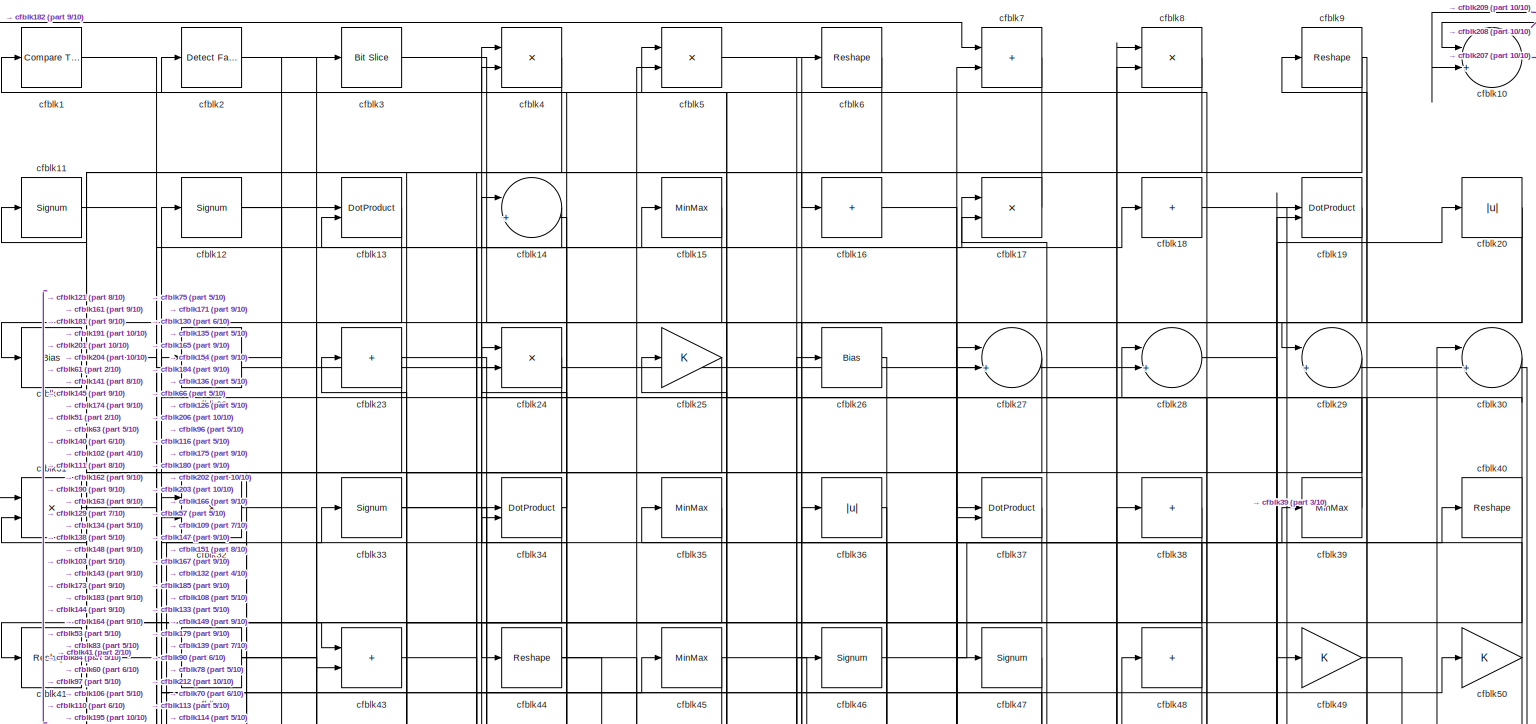
[diagram: root canvas - part 1/10, full width, top band]
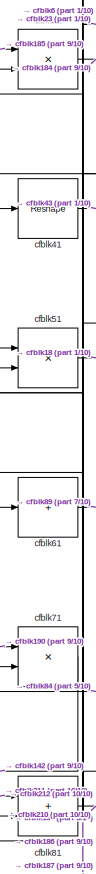
[diagram: root canvas - part 2/10, top left region]
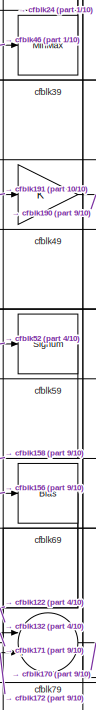
[diagram: root canvas - part 3/10, top right region]
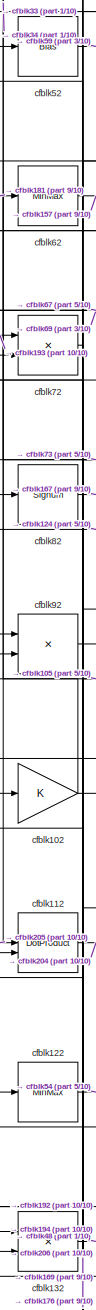
[diagram: root canvas - part 4/10, middle left region]
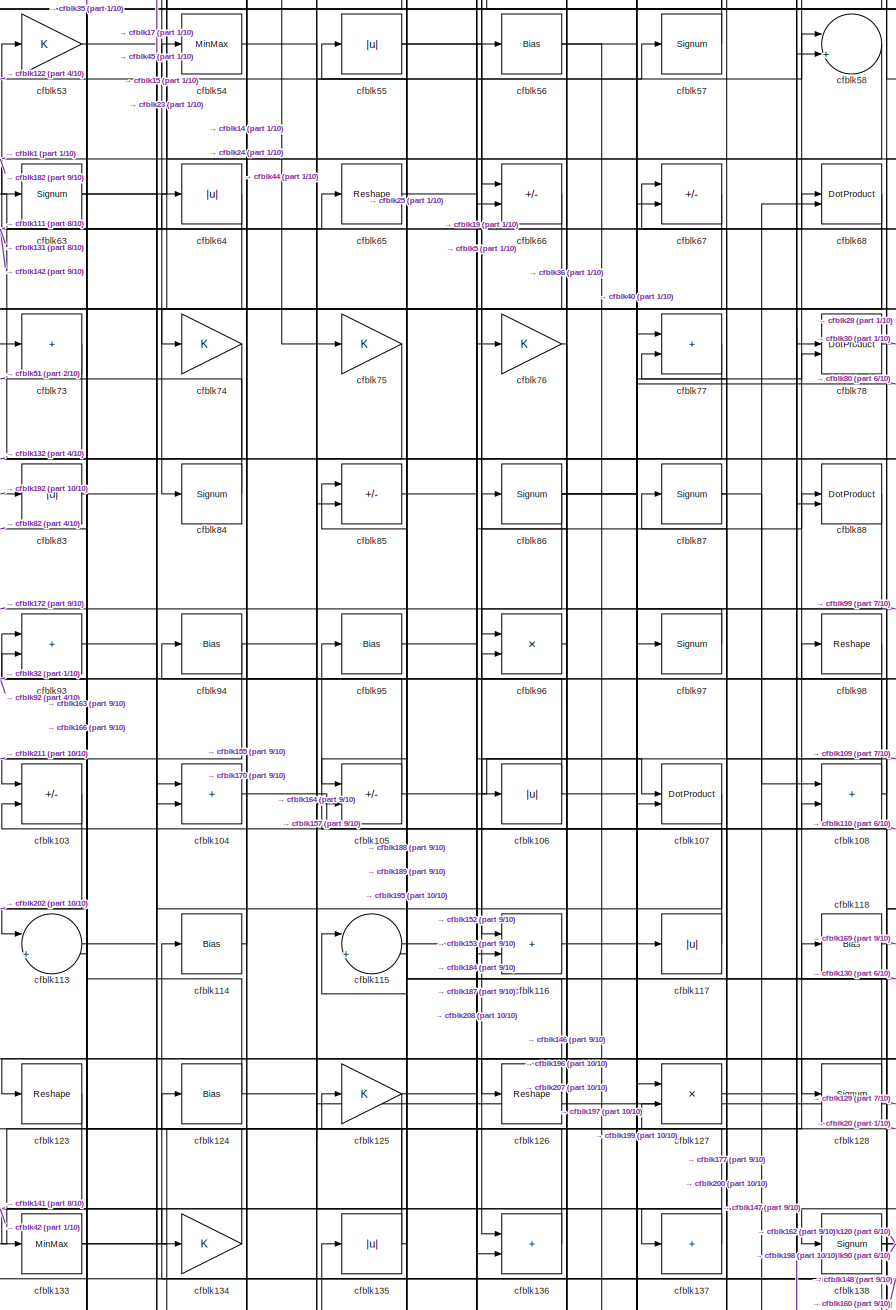
[diagram: root canvas - part 5/10, central region]
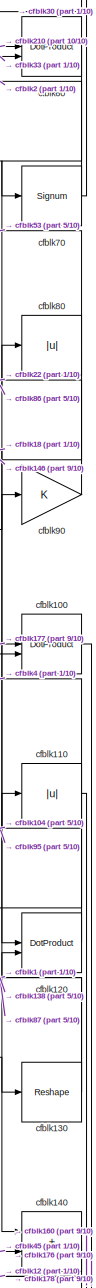
[diagram: root canvas - part 6/10, middle right region]
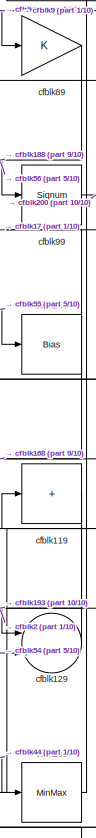
[diagram: root canvas - part 7/10, middle right region]
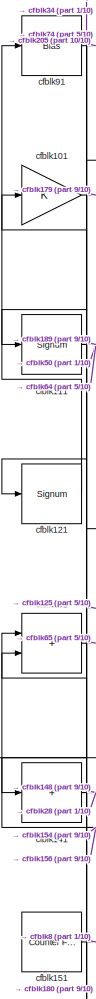
[diagram: root canvas - part 8/10, middle left region]
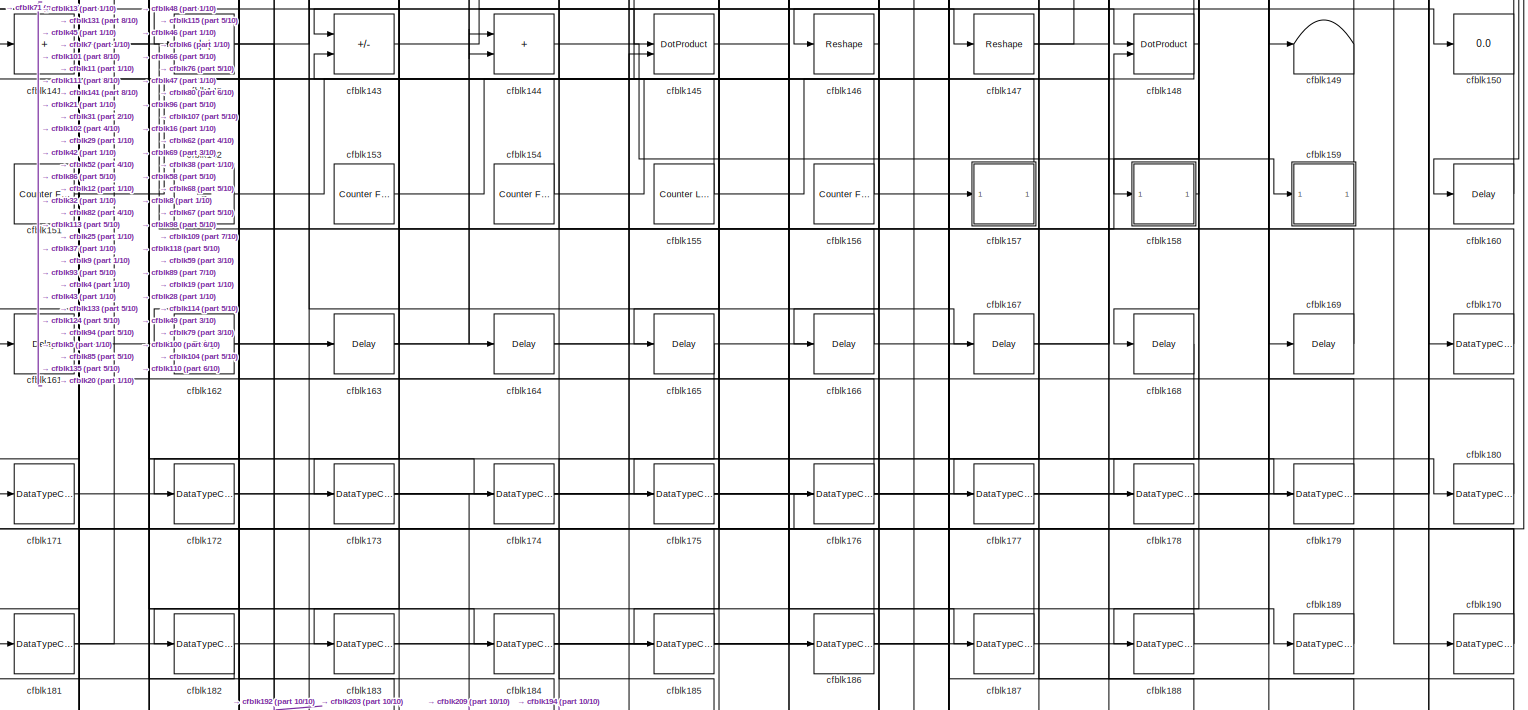
[diagram: root canvas - part 9/10, full width, bottom band]
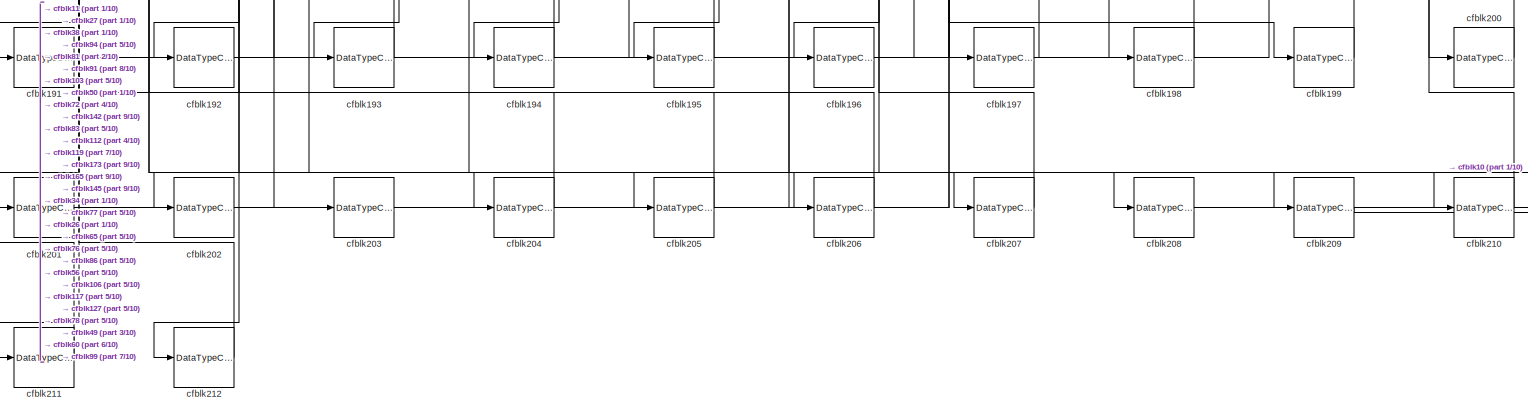
[diagram: root canvas - part 10/10, full width, bottom band]
MODEL slx_4d4747da5e24
KIND model
CONFIG AbsTol = auto
CONFIG EnableMultiTasking = off
CONFIG FixedStep = auto
CONFIG MaxStep = auto
CONFIG MinStep = auto
CONFIG RelTol = 1e-3
CONFIG SampleTimeConstraint = Unconstrained
CONFIG SolverName = VariableStepAuto
CONFIG StartTime = 0.0
CONFIG StopTime = 10.0
BLOCK [Reference] cfblk1  REF=hdlsllib/Logic and Bit
Operations/Compare
To Constant
  SourceBlock = hdlsllib/Logic and Bit\nOperations/Compare\nTo Constant
  SourceType = Compare To Constant
BLOCK [Sum] cfblk10
  Inputs = |++
BLOCK [DotProduct] cfblk100
  OutDataTypeStr = Inherit: Inherit via internal rule
BLOCK [Gain] cfblk101
BLOCK [Gain] cfblk102
BLOCK [Sum] cfblk103
  IconShape = rectangular
  Inputs = +-
BLOCK [Sum] cfblk104
  IconShape = rectangular
BLOCK [Sum] cfblk105
  IconShape = rectangular
  Inputs = +-
BLOCK [Abs] cfblk106
  SaturateOnIntegerOverflow = off
BLOCK [DotProduct] cfblk107
  OutDataTypeStr = Inherit: Inherit via internal rule
BLOCK [Sum] cfblk108
  IconShape = rectangular
BLOCK [Bias] cfblk109
  Bias = 0.0
  SaturateOnIntegerOverflow = off
BLOCK [Signum] cfblk11
BLOCK [Abs] cfblk110
  SaturateOnIntegerOverflow = off
BLOCK [Signum] cfblk111
BLOCK [DotProduct] cfblk112
  OutDataTypeStr = Inherit: Inherit via internal rule
BLOCK [Sum] cfblk113
  Inputs = |++
BLOCK [Bias] cfblk114
  Bias = 0.0
  SaturateOnIntegerOverflow = off
BLOCK [Sum] cfblk115
  Inputs = |++
BLOCK [Sum] cfblk116
  IconShape = rectangular
BLOCK [Abs] cfblk117
  SaturateOnIntegerOverflow = off
BLOCK [Bias] cfblk118
  Bias = 0.0
  SaturateOnIntegerOverflow = off
BLOCK [Sum] cfblk119
  IconShape = rectangular
  Inputs = +
BLOCK [Signum] cfblk12
BLOCK [DotProduct] cfblk120
  OutDataTypeStr = Inherit: Inherit via internal rule
BLOCK [Signum] cfblk121
BLOCK [MinMax] cfblk122
BLOCK [Reshape] cfblk123
BLOCK [Bias] cfblk124
  Bias = 0.0
  SaturateOnIntegerOverflow = off
BLOCK [Gain] cfblk125
BLOCK [Reshape] cfblk126
BLOCK [Product] cfblk127
  Inputs = */
  RndMeth = Zero
  SaturateOnIntegerOverflow = on
BLOCK [Signum] cfblk128
BLOCK [Sum] cfblk129
  Inputs = |++
BLOCK [DotProduct] cfblk13
  OutDataTypeStr = Inherit: Inherit via internal rule
BLOCK [Reshape] cfblk130
BLOCK [Sum] cfblk131
  IconShape = rectangular
BLOCK [Product] cfblk132
  Inputs = */
  RndMeth = Zero
  SaturateOnIntegerOverflow = on
BLOCK [MinMax] cfblk133
BLOCK [Gain] cfblk134
BLOCK [Abs] cfblk135
  SaturateOnIntegerOverflow = off
BLOCK [Sum] cfblk136
  IconShape = rectangular
BLOCK [Sum] cfblk137
  IconShape = rectangular
  Inputs = +
BLOCK [Signum] cfblk138
BLOCK [MinMax] cfblk139
BLOCK [Sum] cfblk14
  Inputs = |++
BLOCK [Sum] cfblk140
  IconShape = rectangular
BLOCK [Sum] cfblk141
  IconShape = rectangular
  Inputs = +
BLOCK [Abs] cfblk142
  SaturateOnIntegerOverflow = off
BLOCK [Sum] cfblk143
  IconShape = rectangular
  Inputs = +-
BLOCK [Sum] cfblk144
  IconShape = rectangular
BLOCK [DotProduct] cfblk145
  OutDataTypeStr = Inherit: Inherit via internal rule
BLOCK [Reshape] cfblk146
BLOCK [Reshape] cfblk147
BLOCK [DotProduct] cfblk148
  OutDataTypeStr = Inherit: Inherit via internal rule
BLOCK [Terminator] cfblk149
BLOCK [MinMax] cfblk15
BLOCK [Display] cfblk150
  Decimation = 1
BLOCK [Reference] cfblk151  REF=hdlsllib/Sources/Counter
Free-Running
  SourceBlock = hdlsllib/Sources/Counter\nFree-Running
  SourceType = Counter Free-Running
BLOCK [Ground] cfblk152
BLOCK [Reference] cfblk153  REF=hdlsllib/Sources/Counter
Free-Running
  SourceBlock = hdlsllib/Sources/Counter\nFree-Running
  SourceType = Counter Free-Running
BLOCK [Reference] cfblk154  REF=hdlsllib/Sources/Counter
Free-Running
  SourceBlock = hdlsllib/Sources/Counter\nFree-Running
  SourceType = Counter Free-Running
BLOCK [Reference] cfblk155  REF=hdlsllib/Sources/Counter
Limited
  SourceBlock = hdlsllib/Sources/Counter\nLimited
  SourceType = Counter Limited
BLOCK [Reference] cfblk156  REF=hdlsllib/Sources/Counter
Free-Running
  SourceBlock = hdlsllib/Sources/Counter\nFree-Running
  SourceType = Counter Free-Running
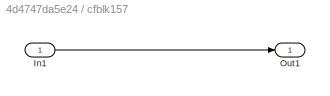
BLOCK [SubSystem] cfblk157
  LibrarySourceBlock = hdlsllib/Ports &\nSubsystems/Subsystem
BLOCK [Inport] cfblk157/In1
BLOCK [Outport] cfblk157/Out1
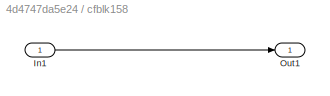
BLOCK [SubSystem] cfblk158
  LibrarySourceBlock = hdlsllib/Ports &\nSubsystems/Subsystem
BLOCK [Inport] cfblk158/In1
BLOCK [Outport] cfblk158/Out1
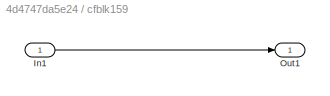
BLOCK [SubSystem] cfblk159
  LibrarySourceBlock = hdlsllib/Ports &\nSubsystems/Subsystem
BLOCK [Inport] cfblk159/In1
BLOCK [Outport] cfblk159/Out1
BLOCK [Sum] cfblk16
  IconShape = rectangular
  Inputs = +
BLOCK [Delay] cfblk160
  InputPortMap = u0
  SampleTime = 1
BLOCK [Delay] cfblk161
  InputPortMap = u0
  SampleTime = 1
BLOCK [Delay] cfblk162
  InputPortMap = u0
  SampleTime = 1
BLOCK [Delay] cfblk163
  InputPortMap = u0
  SampleTime = 1
BLOCK [Delay] cfblk164
  InputPortMap = u0
  SampleTime = 1
BLOCK [Delay] cfblk165
  InputPortMap = u0
  SampleTime = 1
BLOCK [Delay] cfblk166
  InputPortMap = u0
  SampleTime = 1
BLOCK [Delay] cfblk167
  InputPortMap = u0
  SampleTime = 1
BLOCK [Delay] cfblk168
  InputPortMap = u0
  SampleTime = 1
BLOCK [Delay] cfblk169
  InputPortMap = u0
  SampleTime = 1
BLOCK [Product] cfblk17
  Inputs = */
  RndMeth = Zero
  SaturateOnIntegerOverflow = on
BLOCK [DataTypeConversion] cfblk170
  OutDataTypeStr = uint8
  RndMeth = Floor
  SaturateOnIntegerOverflow = off
BLOCK [DataTypeConversion] cfblk171
  OutDataTypeStr = uint8
  RndMeth = Floor
  SaturateOnIntegerOverflow = off
BLOCK [DataTypeConversion] cfblk172
  OutDataTypeStr = uint8
  RndMeth = Floor
  SaturateOnIntegerOverflow = off
BLOCK [DataTypeConversion] cfblk173
  RndMeth = Floor
  SaturateOnIntegerOverflow = off
BLOCK [DataTypeConversion] cfblk174
  OutDataTypeStr = uint8
  RndMeth = Floor
  SaturateOnIntegerOverflow = off
BLOCK [DataTypeConversion] cfblk175
  OutDataTypeStr = uint8
  RndMeth = Floor
  SaturateOnIntegerOverflow = off
BLOCK [DataTypeConversion] cfblk176
  OutDataTypeStr = uint8
  RndMeth = Floor
  SaturateOnIntegerOverflow = off
BLOCK [DataTypeConversion] cfblk177
  OutDataTypeStr = uint8
  RndMeth = Floor
  SaturateOnIntegerOverflow = off
BLOCK [DataTypeConversion] cfblk178
  OutDataTypeStr = uint8
  RndMeth = Floor
  SaturateOnIntegerOverflow = off
BLOCK [DataTypeConversion] cfblk179
  OutDataTypeStr = uint8
  RndMeth = Floor
  SaturateOnIntegerOverflow = off
BLOCK [Sum] cfblk18
  IconShape = rectangular
  Inputs = +
BLOCK [DataTypeConversion] cfblk180
  OutDataTypeStr = uint8
  RndMeth = Floor
  SaturateOnIntegerOverflow = off
BLOCK [DataTypeConversion] cfblk181
  RndMeth = Floor
  SaturateOnIntegerOverflow = off
BLOCK [DataTypeConversion] cfblk182
  OutDataTypeStr = uint8
  RndMeth = Floor
  SaturateOnIntegerOverflow = off
BLOCK [DataTypeConversion] cfblk183
  OutDataTypeStr = uint8
  RndMeth = Floor
  SaturateOnIntegerOverflow = off
BLOCK [DataTypeConversion] cfblk184
  RndMeth = Floor
  SaturateOnIntegerOverflow = off
BLOCK [DataTypeConversion] cfblk185
  OutDataTypeStr = uint8
  RndMeth = Floor
  SaturateOnIntegerOverflow = off
BLOCK [DataTypeConversion] cfblk186
  OutDataTypeStr = uint8
  RndMeth = Floor
  SaturateOnIntegerOverflow = off
BLOCK [DataTypeConversion] cfblk187
  OutDataTypeStr = uint8
  RndMeth = Floor
  SaturateOnIntegerOverflow = off
BLOCK [DataTypeConversion] cfblk188
  OutDataTypeStr = uint8
  RndMeth = Floor
  SaturateOnIntegerOverflow = off
BLOCK [DataTypeConversion] cfblk189
  OutDataTypeStr = uint8
  RndMeth = Floor
  SaturateOnIntegerOverflow = off
BLOCK [DotProduct] cfblk19
  OutDataTypeStr = Inherit: Inherit via internal rule
BLOCK [DataTypeConversion] cfblk190
  RndMeth = Floor
  SaturateOnIntegerOverflow = off
BLOCK [DataTypeConversion] cfblk191
  OutDataTypeStr = uint8
  RndMeth = Floor
  SaturateOnIntegerOverflow = off
BLOCK [DataTypeConversion] cfblk192
  RndMeth = Floor
  SaturateOnIntegerOverflow = off
BLOCK [DataTypeConversion] cfblk193
  OutDataTypeStr = uint8
  RndMeth = Floor
  SaturateOnIntegerOverflow = off
BLOCK [DataTypeConversion] cfblk194
  OutDataTypeStr = uint8
  RndMeth = Floor
  SaturateOnIntegerOverflow = off
BLOCK [DataTypeConversion] cfblk195
  RndMeth = Floor
  SaturateOnIntegerOverflow = off
BLOCK [DataTypeConversion] cfblk196
  OutDataTypeStr = uint8
  RndMeth = Floor
  SaturateOnIntegerOverflow = off
BLOCK [DataTypeConversion] cfblk197
  OutDataTypeStr = uint8
  RndMeth = Floor
  SaturateOnIntegerOverflow = off
BLOCK [DataTypeConversion] cfblk198
  OutDataTypeStr = uint8
  RndMeth = Floor
  SaturateOnIntegerOverflow = off
BLOCK [DataTypeConversion] cfblk199
  OutDataTypeStr = uint8
  RndMeth = Floor
  SaturateOnIntegerOverflow = off
BLOCK [Reference] cfblk2  REF=hdlsllib/Logic and Bit
Operations/Detect Fall
Nonpositive
  SourceBlock = hdlsllib/Logic and Bit\nOperations/Detect Fall\nNonpositive
  SourceType = Detect Fall Nonpositive
BLOCK [Abs] cfblk20
  SaturateOnIntegerOverflow = off
BLOCK [DataTypeConversion] cfblk200
  OutDataTypeStr = uint8
  RndMeth = Floor
  SaturateOnIntegerOverflow = off
BLOCK [DataTypeConversion] cfblk201
  OutDataTypeStr = uint8
  RndMeth = Floor
  SaturateOnIntegerOverflow = off
BLOCK [DataTypeConversion] cfblk202
  OutDataTypeStr = uint8
  RndMeth = Floor
  SaturateOnIntegerOverflow = off
BLOCK [DataTypeConversion] cfblk203
  OutDataTypeStr = uint8
  RndMeth = Floor
  SaturateOnIntegerOverflow = off
BLOCK [DataTypeConversion] cfblk204
  OutDataTypeStr = uint8
  RndMeth = Floor
  SaturateOnIntegerOverflow = off
BLOCK [DataTypeConversion] cfblk205
  OutDataTypeStr = uint8
  RndMeth = Floor
  SaturateOnIntegerOverflow = off
BLOCK [DataTypeConversion] cfblk206
  OutDataTypeStr = uint8
  RndMeth = Floor
  SaturateOnIntegerOverflow = off
BLOCK [DataTypeConversion] cfblk207
  OutDataTypeStr = uint8
  RndMeth = Floor
  SaturateOnIntegerOverflow = off
BLOCK [DataTypeConversion] cfblk208
  OutDataTypeStr = uint8
  RndMeth = Floor
  SaturateOnIntegerOverflow = off
BLOCK [DataTypeConversion] cfblk209
  OutDataTypeStr = uint8
  RndMeth = Floor
  SaturateOnIntegerOverflow = off
BLOCK [Bias] cfblk21
  Bias = 0.0
  SaturateOnIntegerOverflow = off
BLOCK [DataTypeConversion] cfblk210
  OutDataTypeStr = uint8
  RndMeth = Floor
  SaturateOnIntegerOverflow = off
BLOCK [DataTypeConversion] cfblk211
  OutDataTypeStr = uint8
  RndMeth = Floor
  SaturateOnIntegerOverflow = off
BLOCK [DataTypeConversion] cfblk212
  OutDataTypeStr = uint8
  RndMeth = Floor
  SaturateOnIntegerOverflow = off
BLOCK [Bias] cfblk22
  Bias = 0.0
  SaturateOnIntegerOverflow = off
BLOCK [Sum] cfblk23
  IconShape = rectangular
  Inputs = +
BLOCK [Product] cfblk24
  Inputs = */
  RndMeth = Zero
  SaturateOnIntegerOverflow = on
BLOCK [Gain] cfblk25
BLOCK [Bias] cfblk26
  Bias = 0.0
  SaturateOnIntegerOverflow = off
BLOCK [Sum] cfblk27
  Inputs = |++
BLOCK [Sum] cfblk28
  Inputs = |++
BLOCK [Sum] cfblk29
  Inputs = |++
BLOCK [Reference] cfblk3  REF=hdlsllib/Logic and Bit
Operations/Bit Slice
  SourceBlock = hdlsllib/Logic and Bit\nOperations/Bit Slice
  SourceType = Bit Slice
BLOCK [Sum] cfblk30
  Inputs = |++
BLOCK [Product] cfblk31
  Inputs = */
  RndMeth = Zero
  SaturateOnIntegerOverflow = on
BLOCK [Product] cfblk32
  Inputs = */
  RndMeth = Zero
  SaturateOnIntegerOverflow = on
BLOCK [Signum] cfblk33
BLOCK [DotProduct] cfblk34
  OutDataTypeStr = Inherit: Inherit via internal rule
BLOCK [MinMax] cfblk35
BLOCK [Abs] cfblk36
  SaturateOnIntegerOverflow = off
BLOCK [DotProduct] cfblk37
  OutDataTypeStr = Inherit: Inherit via internal rule
BLOCK [Sum] cfblk38
  IconShape = rectangular
  Inputs = +
BLOCK [MinMax] cfblk39
BLOCK [Product] cfblk4
  Inputs = */
  RndMeth = Zero
  SaturateOnIntegerOverflow = on
BLOCK [Reshape] cfblk40
BLOCK [Reshape] cfblk41
BLOCK [Bias] cfblk42
  Bias = 0.0
  SaturateOnIntegerOverflow = off
BLOCK [Sum] cfblk43
  IconShape = rectangular
BLOCK [Reshape] cfblk44
BLOCK [MinMax] cfblk45
BLOCK [Signum] cfblk46
BLOCK [Signum] cfblk47
BLOCK [Sum] cfblk48
  IconShape = rectangular
  Inputs = +
BLOCK [Gain] cfblk49
BLOCK [Product] cfblk5
  Inputs = */
  RndMeth = Zero
  SaturateOnIntegerOverflow = on
BLOCK [Gain] cfblk50
BLOCK [Product] cfblk51
  Inputs = */
  RndMeth = Zero
  SaturateOnIntegerOverflow = on
BLOCK [Bias] cfblk52
  Bias = 0.0
  SaturateOnIntegerOverflow = off
BLOCK [Gain] cfblk53
BLOCK [MinMax] cfblk54
BLOCK [Abs] cfblk55
  SaturateOnIntegerOverflow = off
BLOCK [Bias] cfblk56
  Bias = 0.0
  SaturateOnIntegerOverflow = off
BLOCK [Signum] cfblk57
BLOCK [Sum] cfblk58
  Inputs = |++
BLOCK [Signum] cfblk59
BLOCK [Reshape] cfblk6
BLOCK [DotProduct] cfblk60
  OutDataTypeStr = Inherit: Inherit via internal rule
BLOCK [Sum] cfblk61
  IconShape = rectangular
  Inputs = +
BLOCK [MinMax] cfblk62
BLOCK [Signum] cfblk63
BLOCK [Abs] cfblk64
  SaturateOnIntegerOverflow = off
BLOCK [Reshape] cfblk65
BLOCK [Sum] cfblk66
  IconShape = rectangular
  Inputs = +-
BLOCK [Sum] cfblk67
  IconShape = rectangular
  Inputs = +-
BLOCK [DotProduct] cfblk68
  OutDataTypeStr = Inherit: Inherit via internal rule
BLOCK [Bias] cfblk69
  Bias = 0.0
  SaturateOnIntegerOverflow = off
BLOCK [Sum] cfblk7
  IconShape = rectangular
BLOCK [Signum] cfblk70
BLOCK [Product] cfblk71
  Inputs = */
  RndMeth = Zero
  SaturateOnIntegerOverflow = on
BLOCK [Product] cfblk72
  Inputs = */
  RndMeth = Zero
  SaturateOnIntegerOverflow = on
BLOCK [Sum] cfblk73
  IconShape = rectangular
  Inputs = +
BLOCK [Gain] cfblk74
BLOCK [Gain] cfblk75
BLOCK [Gain] cfblk76
BLOCK [Sum] cfblk77
  IconShape = rectangular
BLOCK [DotProduct] cfblk78
  OutDataTypeStr = Inherit: Inherit via internal rule
BLOCK [Sum] cfblk79
  Inputs = |++
BLOCK [Product] cfblk8
  Inputs = */
  RndMeth = Zero
  SaturateOnIntegerOverflow = on
BLOCK [Abs] cfblk80
  SaturateOnIntegerOverflow = off
BLOCK [Sum] cfblk81
  IconShape = rectangular
BLOCK [Signum] cfblk82
BLOCK [Abs] cfblk83
  SaturateOnIntegerOverflow = off
BLOCK [Signum] cfblk84
BLOCK [Sum] cfblk85
  IconShape = rectangular
  Inputs = +-
BLOCK [Signum] cfblk86
BLOCK [Signum] cfblk87
BLOCK [DotProduct] cfblk88
  OutDataTypeStr = Inherit: Inherit via internal rule
BLOCK [Gain] cfblk89
BLOCK [Reshape] cfblk9
BLOCK [Gain] cfblk90
BLOCK [Bias] cfblk91
  Bias = 0.0
  SaturateOnIntegerOverflow = off
BLOCK [Product] cfblk92
  Inputs = */
  RndMeth = Zero
  SaturateOnIntegerOverflow = on
BLOCK [Sum] cfblk93
  IconShape = rectangular
BLOCK [Bias] cfblk94
  Bias = 0.0
  SaturateOnIntegerOverflow = off
BLOCK [Bias] cfblk95
  Bias = 0.0
  SaturateOnIntegerOverflow = off
BLOCK [Product] cfblk96
  Inputs = */
  RndMeth = Zero
  SaturateOnIntegerOverflow = on
BLOCK [Signum] cfblk97
BLOCK [Reshape] cfblk98
BLOCK [Signum] cfblk99
LINE cfblk100:1 -> cfblk176:1
LINE cfblk101:1 -> cfblk179:1
NET cfblk102:1 -> cfblk33:1, cfblk34:1
LINE cfblk103:1 -> cfblk202:1
LINE cfblk104:1 -> cfblk110:1
NET cfblk105:1 -> cfblk107:1, cfblk92:2
NET cfblk106:1 -> cfblk199:1, cfblk24:2
LINE cfblk107:1 -> cfblk136:2
NET cfblk108:1 -> cfblk28:1, cfblk32:1
NET cfblk109:1 -> cfblk168:1, cfblk17:2
LINE cfblk10:1 -> cfblk207:1
NET cfblk110:1 -> cfblk160:1, cfblk178:1, cfblk4:2
NET cfblk111:1 -> cfblk189:1, cfblk50:1, cfblk64:1
LINE cfblk112:1 -> cfblk204:1
LINE cfblk113:1 -> cfblk15:1
LINE cfblk114:1 -> cfblk14:1
LINE cfblk115:1 -> cfblk187:1
LINE cfblk116:1 -> cfblk40:1
LINE cfblk117:1 -> cfblk93:1
LINE cfblk118:1 -> cfblk169:1
LINE cfblk119:1 -> cfblk193:1
LINE cfblk11:1 -> cfblk145:1
LINE cfblk120:1 -> cfblk95:1
LINE cfblk121:1 -> cfblk91:1
LINE cfblk122:1 -> cfblk54:1
LINE cfblk123:1 -> cfblk133:1
NET cfblk124:1 -> cfblk128:1, cfblk82:1
NET cfblk125:1 -> cfblk108:2, cfblk141:1
LINE cfblk126:1 -> cfblk85:1
LINE cfblk127:1 -> cfblk198:1
LINE cfblk128:1 -> cfblk55:1
LINE cfblk129:1 -> cfblk119:1
NET cfblk12:1 -> cfblk13:1, cfblk163:1
NET cfblk130:1 -> cfblk1:1, cfblk87:1
LINE cfblk131:1 -> cfblk65:1
LINE cfblk132:1 -> cfblk48:1
NET cfblk133:1 -> cfblk147:1, cfblk20:1
LINE cfblk134:1 -> cfblk103:2
NET cfblk135:1 -> cfblk23:1, cfblk25:1
LINE cfblk136:1 -> cfblk51:2
LINE cfblk137:1 -> cfblk125:1
NET cfblk138:1 -> cfblk120:2, cfblk90:1
LINE cfblk139:1 -> cfblk9:1
LINE cfblk13:1 -> cfblk161:1
LINE cfblk140:1 -> cfblk12:1
NET cfblk141:1 -> cfblk148:2, cfblk28:2
NET cfblk142:1 -> cfblk203:1, cfblk68:1
LINE cfblk143:1 -> cfblk150:1
LINE cfblk144:1 -> cfblk159:1
LINE cfblk145:1 -> cfblk186:1
LINE cfblk146:1 -> cfblk96:2
NET cfblk147:1 -> cfblk38:1, cfblk68:2
NET cfblk148:1 -> cfblk143:2, cfblk67:1, cfblk98:1
LINE cfblk14:1 -> cfblk13:2
LINE cfblk151:1 -> cfblk8:2
LINE cfblk152:1 -> cfblk66:2
LINE cfblk153:1 -> cfblk76:1
NET cfblk154:1 -> cfblk131:1, cfblk6:1
NET cfblk155:1 -> cfblk67:2, cfblk94:1
NET cfblk156:1 -> cfblk131:2, cfblk69:1
LINE cfblk157/In1:1 -> cfblk157/Out1:1
LINE cfblk157:1 -> cfblk135:1
LINE cfblk158/In1:1 -> cfblk158/Out1:1
LINE cfblk158:1 -> cfblk118:1
LINE cfblk159/In1:1 -> cfblk159/Out1:1
LINE cfblk159:1 -> cfblk114:1
LINE cfblk15:1 -> cfblk84:1
LINE cfblk160:1 -> cfblk104:1
LINE cfblk161:1 -> cfblk144:1
LINE cfblk162:1 -> cfblk58:2
LINE cfblk163:1 -> cfblk113:2
LINE cfblk164:1 -> cfblk85:2
LINE cfblk165:1 -> cfblk194:1
LINE cfblk166:1 -> cfblk93:2
LINE cfblk167:1 -> cfblk8:1
LINE cfblk168:1 -> cfblk175:1
LINE cfblk169:1 -> cfblk52:1
LINE cfblk16:1 -> cfblk180:1
LINE cfblk170:1 -> cfblk124:1
LINE cfblk171:1 -> cfblk79:1
LINE cfblk172:1 -> cfblk79:2
NET cfblk173:1 -> cfblk209:1, cfblk5:2
LINE cfblk174:1 -> cfblk37:1
LINE cfblk175:1 -> cfblk37:2
LINE cfblk176:1 -> cfblk102:1
LINE cfblk177:1 -> cfblk100:1
LINE cfblk178:1 -> cfblk100:2
LINE cfblk179:1 -> cfblk19:1
LINE cfblk17:1 -> cfblk16:1
LINE cfblk180:1 -> cfblk101:1
NET cfblk181:1 -> cfblk19:2, cfblk62:1
LINE cfblk182:1 -> cfblk7:1
LINE cfblk183:1 -> cfblk7:2
NET cfblk184:1 -> cfblk107:2, cfblk46:1
LINE cfblk185:1 -> cfblk31:1
LINE cfblk186:1 -> cfblk31:2
LINE cfblk187:1 -> cfblk71:2
LINE cfblk188:1 -> cfblk115:1
LINE cfblk189:1 -> cfblk115:2
LINE cfblk18:1 -> cfblk140:1
NET cfblk190:1 -> cfblk42:1, cfblk71:1
LINE cfblk191:1 -> cfblk49:1
NET cfblk192:1 -> cfblk145:2, cfblk83:1
LINE cfblk193:1 -> cfblk72:1
LINE cfblk194:1 -> cfblk72:2
NET cfblk195:1 -> cfblk117:1, cfblk34:2
LINE cfblk196:1 -> cfblk77:1
LINE cfblk197:1 -> cfblk77:2
LINE cfblk198:1 -> cfblk78:1
LINE cfblk199:1 -> cfblk127:1
LINE cfblk19:1 -> cfblk66:1
LINE cfblk1:1 -> cfblk63:1
LINE cfblk200:1 -> cfblk127:2
LINE cfblk201:1 -> cfblk26:1
LINE cfblk202:1 -> cfblk27:1
LINE cfblk203:1 -> cfblk27:2
LINE cfblk204:1 -> cfblk11:1
LINE cfblk205:1 -> cfblk112:1
LINE cfblk206:1 -> cfblk112:2
LINE cfblk207:1 -> cfblk86:1
LINE cfblk208:1 -> cfblk10:1
LINE cfblk209:1 -> cfblk10:2
NET cfblk20:1 -> cfblk165:1, cfblk43:2
LINE cfblk210:1 -> cfblk60:1
LINE cfblk211:1 -> cfblk81:1
LINE cfblk212:1 -> cfblk81:2
LINE cfblk21:1 -> cfblk174:1
LINE cfblk22:1 -> cfblk3:1
NET cfblk23:1 -> cfblk61:1, cfblk97:1
LINE cfblk24:1 -> cfblk113:1
LINE cfblk25:1 -> cfblk143:1
LINE cfblk26:1 -> cfblk206:1
LINE cfblk27:1 -> cfblk201:1
LINE cfblk28:1 -> cfblk149:1
LINE cfblk29:1 -> cfblk162:1
LINE cfblk2:1 -> cfblk129:1
LINE cfblk30:1 -> cfblk29:2
LINE cfblk31:1 -> cfblk184:1
LINE cfblk32:1 -> cfblk148:1
NET cfblk33:1 -> cfblk60:2, cfblk70:1
NET cfblk34:1 -> cfblk121:1, cfblk14:2
LINE cfblk35:1 -> cfblk103:1
LINE cfblk36:1 -> cfblk126:1
LINE cfblk37:1 -> cfblk173:1
LINE cfblk38:1 -> cfblk191:1
LINE cfblk39:1 -> cfblk24:1
LINE cfblk3:1 -> cfblk47:1
NET cfblk40:1 -> cfblk44:1, cfblk5:1
LINE cfblk41:1 -> cfblk43:1
NET cfblk42:1 -> cfblk134:1, cfblk138:1
LINE cfblk43:1 -> cfblk164:1
NET cfblk44:1 -> cfblk139:1, cfblk75:1
NET cfblk45:1 -> cfblk140:2, cfblk171:1
LINE cfblk46:1 -> cfblk39:1
LINE cfblk47:1 -> cfblk166:1
NET cfblk48:1 -> cfblk185:1, cfblk35:1
LINE cfblk49:1 -> cfblk190:1
LINE cfblk4:1 -> cfblk144:2
NET cfblk50:1 -> cfblk212:1, cfblk4:1
LINE cfblk51:1 -> cfblk18:1
LINE cfblk52:1 -> cfblk59:1
LINE cfblk53:1 -> cfblk45:1
LINE cfblk54:1 -> cfblk129:2
NET cfblk55:1 -> cfblk109:1, cfblk116:1
NET cfblk56:1 -> cfblk197:1, cfblk99:1
LINE cfblk57:1 -> cfblk32:2
LINE cfblk58:1 -> cfblk182:1
LINE cfblk59:1 -> cfblk158:1
LINE cfblk5:1 -> cfblk136:1
LINE cfblk60:1 -> cfblk120:1
LINE cfblk61:1 -> cfblk89:1
LINE cfblk62:1 -> cfblk157:1
NET cfblk63:1 -> cfblk116:2, cfblk58:1
LINE cfblk64:1 -> cfblk123:1
LINE cfblk65:1 -> cfblk208:1
LINE cfblk66:1 -> cfblk74:1
LINE cfblk67:1 -> cfblk92:1
NET cfblk68:1 -> cfblk105:1, cfblk88:2
NET cfblk69:1 -> cfblk122:1, cfblk132:2
LINE cfblk6:1 -> cfblk41:1
NET cfblk70:1 -> cfblk2:1, cfblk30:2
LINE cfblk71:1 -> cfblk142:1
LINE cfblk72:1 -> cfblk192:1
LINE cfblk73:1 -> cfblk132:1
LINE cfblk74:1 -> cfblk111:1
LINE cfblk75:1 -> cfblk105:2
LINE cfblk76:1 -> cfblk196:1
LINE cfblk77:1 -> cfblk195:1
LINE cfblk78:1 -> cfblk30:1
LINE cfblk79:1 -> cfblk170:1
LINE cfblk7:1 -> cfblk181:1
NET cfblk80:1 -> cfblk146:1, cfblk53:1
LINE cfblk81:1 -> cfblk210:1
LINE cfblk82:1 -> cfblk167:1
LINE cfblk83:1 -> cfblk17:1
LINE cfblk84:1 -> cfblk51:1
LINE cfblk85:1 -> cfblk56:1
NET cfblk86:1 -> cfblk130:1, cfblk172:1, cfblk78:2, cfblk80:1
NET cfblk87:1 -> cfblk108:1, cfblk137:1
LINE cfblk88:1 -> cfblk106:1
LINE cfblk89:1 -> cfblk188:1
LINE cfblk8:1 -> cfblk21:1
LINE cfblk90:1 -> cfblk22:1
LINE cfblk91:1 -> cfblk205:1
LINE cfblk92:1 -> cfblk73:1
LINE cfblk93:1 -> cfblk104:2
NET cfblk94:1 -> cfblk211:1, cfblk57:1
LINE cfblk95:1 -> cfblk88:1
LINE cfblk96:1 -> cfblk36:1
LINE cfblk97:1 -> cfblk96:1
LINE cfblk98:1 -> cfblk177:1
LINE cfblk99:1 -> cfblk200:1
NET cfblk9:1 -> cfblk183:1, cfblk29:1
note: NET lines group one-source signal fan-out (src -> all destinations, sorted); 1:1 wires keep LINE
